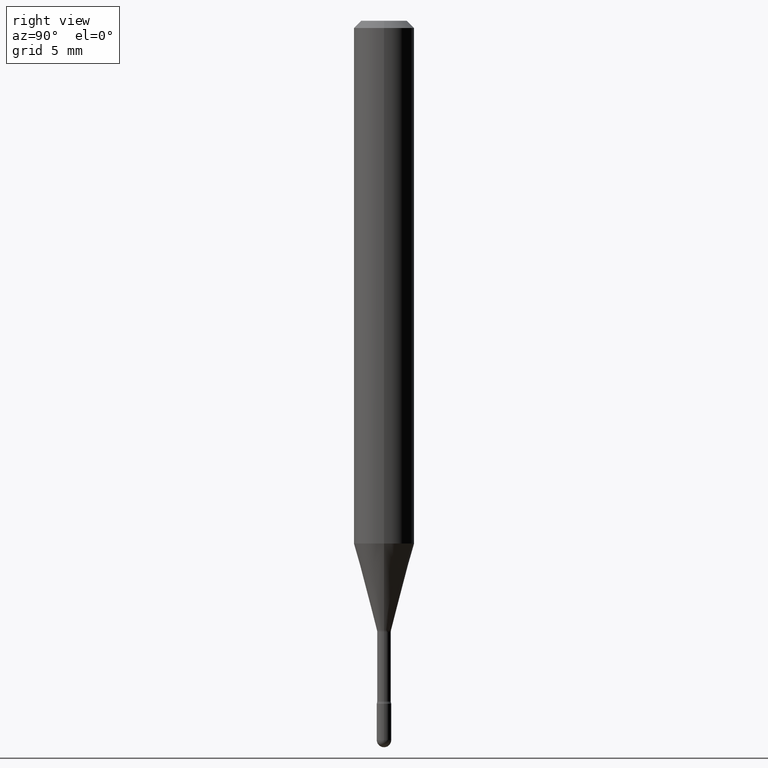
[diagram: clean part render]
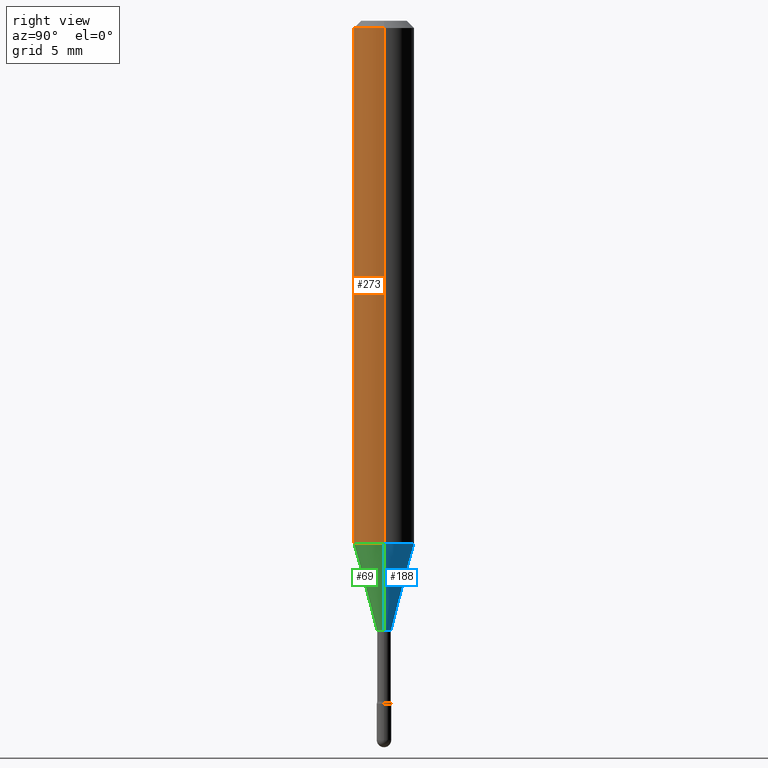
[diagram: same view with three faces highlighted in distinct colors, each labeled with its STEP entity id]
A machine part, right view with three faces highlighted in distinct colors.
Their STEP definitions:

[orange] entity #273 — the highlighted cylindrical surface (edge-blend (fillet) strip) has radius 1.5875 mm, axis along (-0, 0, 1).
#4 = DIRECTION ( 'NONE',  ( -2.445468806185136877E-29, 3.491481338843145188E-15, 1.000000000000000000 ) ) ;
#25 = EDGE_CURVE ( 'NONE', #564, #519, #400, .T. ) ;
#59 = CARTESIAN_POINT ( 'NONE',  ( 0.06250000000000000000, -4.888073874380391431E-16, -0.01500000000000008271 ) ) ;
#61 = CARTESIAN_POINT ( 'NONE',  ( -0.06250000000000000000, 4.440892098500642925E-16, 4.780733988912429571E-16 ) ) ;
#70 = ORIENTED_EDGE ( 'NONE', *, *, #306, .T. ) ;
#76 = DIRECTION ( 'NONE',  ( -2.445468806185136597E-29, 3.491481338843145583E-15, 1.000000000000000000 ) ) ;
#93 = CARTESIAN_POINT ( 'NONE',  ( 0.06250000000000000000, -4.364351673553899931E-16, 4.780733988912490708E-16 ) ) ;
#99 = EDGE_CURVE ( 'NONE', #270, #519, #388, .T. ) ;
#115 = DIRECTION ( 'NONE',  ( 1.000000000000000000, -6.982962677686266711E-15, 4.852736867747366207E-29 ) ) ;
#151 = DIRECTION ( 'NONE',  ( -2.445468806185136877E-29, 3.491481338843145188E-15, 1.000000000000000000 ) ) ;
#161 = CARTESIAN_POINT ( 'NONE',  ( -0.06250000000000001388, -3.324506606780626970E-15, -1.079368740913666747 ) ) ;
#165 = FACE_OUTER_BOUND ( 'NONE', #508, .T. ) ;
#201 = AXIS2_PLACEMENT_3D ( 'NONE', #470, #417, #426 ) ;
#227 = CARTESIAN_POINT ( 'NONE',  ( 3.668203209277725232E-31, -5.237222008264747365E-17, -0.01500000000000008271 ) ) ;
#236 = VECTOR ( 'NONE', #151, 39.37007874015748143 ) ;
#263 = CARTESIAN_POINT ( 'NONE',  ( 0.06250000000000001388, -4.205030983986081256E-15, -1.079368740913666747 ) ) ;
#270 = VERTEX_POINT ( 'NONE', #263 ) ;
#273 = ADVANCED_FACE ( 'NONE', ( #165 ), #378, .T. ) ;
#306 = EDGE_CURVE ( 'NONE', #337, #270, #421, .T. ) ;
#319 = LINE ( 'NONE', #61, #236 ) ;
#337 = VERTEX_POINT ( 'NONE', #161 ) ;
#338 = DIRECTION ( 'NONE',  ( 1.000000000000000000, -6.982962677686266711E-15, 0.000000000000000000 ) ) ;
#367 = EDGE_CURVE ( 'NONE', #337, #564, #319, .T. ) ;
#371 = CARTESIAN_POINT ( 'NONE',  ( -0.06250000000000000000, -1.466394808506606111E-15, -0.01500000000000008271 ) ) ;
#378 = CYLINDRICAL_SURFACE ( 'NONE', #393, 0.06250000000000000000 ) ;
#388 = LINE ( 'NONE', #93, #544 ) ;
#392 = ORIENTED_EDGE ( 'NONE', *, *, #99, .T. ) ;
#393 = AXIS2_PLACEMENT_3D ( 'NONE', #549, #76, #115 ) ;
#400 = CIRCLE ( 'NONE', #479, 0.06250000000000000000 ) ;
#402 = ORIENTED_EDGE ( 'NONE', *, *, #25, .F. ) ;
#417 = DIRECTION ( 'NONE',  ( -2.445468806185136597E-29, 3.491481338843145583E-15, 1.000000000000000000 ) ) ;
#421 = CIRCLE ( 'NONE', #201, 0.06250000000000000000 ) ;
#426 = DIRECTION ( 'NONE',  ( 1.000000000000000000, -6.982962677686262766E-15, 0.000000000000000000 ) ) ;
#428 = DIRECTION ( 'NONE',  ( -2.445468806185136597E-29, 3.491481338843145583E-15, 1.000000000000000000 ) ) ;
#470 = CARTESIAN_POINT ( 'NONE',  ( 2.639562586275698746E-29, -3.768595816630689586E-15, -1.079368740913666747 ) ) ;
#479 = AXIS2_PLACEMENT_3D ( 'NONE', #227, #428, #338 ) ;
#508 = EDGE_LOOP ( 'NONE', ( #566, #70, #392, #402 ) ) ;
#519 = VERTEX_POINT ( 'NONE', #59 ) ;
#544 = VECTOR ( 'NONE', #4, 39.37007874015748143 ) ;
#549 = CARTESIAN_POINT ( 'NONE',  ( -1.169113584055446105E-44, 1.669184350826100908E-30, 4.780733988912460139E-16 ) ) ;
#564 = VERTEX_POINT ( 'NONE', #371 ) ;
#566 = ORIENTED_EDGE ( 'NONE', *, *, #367, .F. ) ;

[blue] entity #188 — the highlighted conical surface has half-angle 15 deg.
#9 = DIRECTION ( 'NONE',  ( 1.000000000000000000, -6.982962677686262766E-15, 0.000000000000000000 ) ) ;
#16 = LINE ( 'NONE', #206, #434 ) ;
#21 = AXIS2_PLACEMENT_3D ( 'NONE', #134, #126, #9 ) ;
#28 = ORIENTED_EDGE ( 'NONE', *, *, #390, .F. ) ;
#126 = DIRECTION ( 'NONE',  ( -2.445468806185136597E-29, 3.491481338843145583E-15, 1.000000000000000000 ) ) ;
#128 = DIRECTION ( 'NONE',  ( 1.000000000000000000, -6.982962677686245411E-15, 0.000000000000000000 ) ) ;
#134 = CARTESIAN_POINT ( 'NONE',  ( 2.639562586275698746E-29, -3.768595816630689586E-15, -1.079368740913666747 ) ) ;
#149 = EDGE_CURVE ( 'NONE', #537, #270, #16, .T. ) ;
#154 = DIRECTION ( 'NONE',  ( -2.445468806185136597E-29, 3.491481338843145583E-15, 1.000000000000000000 ) ) ;
#161 = CARTESIAN_POINT ( 'NONE',  ( -0.06250000000000001388, -3.324506606780626970E-15, -1.079368740913666747 ) ) ;
#188 = ADVANCED_FACE ( 'NONE', ( #450 ), #443, .T. ) ;
#193 = AXIS2_PLACEMENT_3D ( 'NONE', #222, #154, #128 ) ;
#195 = DIRECTION ( 'NONE',  ( 1.000000000000000000, -6.982962677686245411E-15, 0.000000000000000000 ) ) ;
#197 = DIRECTION ( 'NONE',  ( 0.2588190451025211281, 1.565188264969623940E-15, 0.9659258262890682012 ) ) ;
#206 = CARTESIAN_POINT ( 'NONE',  ( 0.01461111260566398153, -4.494635346533574839E-15, -1.258092501787273276 ) ) ;
#222 = CARTESIAN_POINT ( 'NONE',  ( 3.076625968416195482E-29, -4.392606492528752047E-15, -1.258092501787273276 ) ) ;
#244 = CARTESIAN_POINT ( 'NONE',  ( 3.076625968416195482E-29, -4.392606492528752047E-15, -1.258092501787273276 ) ) ;
#247 = AXIS2_PLACEMENT_3D ( 'NONE', #244, #451, #195 ) ;
#256 = VERTEX_POINT ( 'NONE', #423 ) ;
#263 = CARTESIAN_POINT ( 'NONE',  ( 0.06250000000000001388, -4.205030983986081256E-15, -1.079368740913666747 ) ) ;
#270 = VERTEX_POINT ( 'NONE', #263 ) ;
#279 = ORIENTED_EDGE ( 'NONE', *, *, #149, .F. ) ;
#280 = ORIENTED_EDGE ( 'NONE', *, *, #357, .T. ) ;
#285 = CARTESIAN_POINT ( 'NONE',  ( -0.01461111260566398153, -4.288788293295477803E-15, -1.258092501787273276 ) ) ;
#292 = CIRCLE ( 'NONE', #21, 0.06250000000000000000 ) ;
#295 = LINE ( 'NONE', #285, #542 ) ;
#337 = VERTEX_POINT ( 'NONE', #161 ) ;
#339 = CIRCLE ( 'NONE', #247, 0.01461111260566398153 ) ;
#357 = EDGE_CURVE ( 'NONE', #537, #256, #339, .T. ) ;
#390 = EDGE_CURVE ( 'NONE', #270, #337, #292, .T. ) ;
#409 = CARTESIAN_POINT ( 'NONE',  ( 0.01461111260566398153, -4.494635346533574839E-15, -1.258092501787273276 ) ) ;
#416 = DIRECTION ( 'NONE',  ( -0.2588190451025211281, 5.211531920934548675E-15, 0.9659258262890682012 ) ) ;
#423 = CARTESIAN_POINT ( 'NONE',  ( -0.01461111260566398153, -3.806647450038052387E-15, -1.258092501787273276 ) ) ;
#434 = VECTOR ( 'NONE', #197, 39.37007874015748143 ) ;
#443 = CONICAL_SURFACE ( 'NONE', #193, 0.01461111260566398153, 0.2617993877991497964 ) ;
#450 = FACE_OUTER_BOUND ( 'NONE', #491, .T. ) ;
#451 = DIRECTION ( 'NONE',  ( -2.445468806185136597E-29, 3.491481338843145583E-15, 1.000000000000000000 ) ) ;
#491 = EDGE_LOOP ( 'NONE', ( #280, #500, #28, #279 ) ) ;
#500 = ORIENTED_EDGE ( 'NONE', *, *, #552, .T. ) ;
#537 = VERTEX_POINT ( 'NONE', #409 ) ;
#542 = VECTOR ( 'NONE', #416, 39.37007874015748143 ) ;
#552 = EDGE_CURVE ( 'NONE', #256, #337, #295, .T. ) ;

[green] entity #69 — the highlighted conical surface has half-angle 15 deg.
#12 = ORIENTED_EDGE ( 'NONE', *, *, #149, .T. ) ;
#16 = LINE ( 'NONE', #206, #434 ) ;
#68 = DIRECTION ( 'NONE',  ( -2.445468806185136597E-29, 3.491481338843145583E-15, 1.000000000000000000 ) ) ;
#69 = ADVANCED_FACE ( 'NONE', ( #290 ), #504, .T. ) ;
#71 = DIRECTION ( 'NONE',  ( 1.000000000000000000, -6.982962677686245411E-15, 0.000000000000000000 ) ) ;
#90 = ORIENTED_EDGE ( 'NONE', *, *, #306, .F. ) ;
#96 = ORIENTED_EDGE ( 'NONE', *, *, #552, .F. ) ;
#110 = DIRECTION ( 'NONE',  ( -2.445468806185136597E-29, 3.491481338843145583E-15, 1.000000000000000000 ) ) ;
#149 = EDGE_CURVE ( 'NONE', #537, #270, #16, .T. ) ;
#161 = CARTESIAN_POINT ( 'NONE',  ( -0.06250000000000001388, -3.324506606780626970E-15, -1.079368740913666747 ) ) ;
#170 = CARTESIAN_POINT ( 'NONE',  ( 3.076625968416195482E-29, -4.392606492528752047E-15, -1.258092501787273276 ) ) ;
#178 = EDGE_CURVE ( 'NONE', #256, #537, #321, .T. ) ;
#181 = AXIS2_PLACEMENT_3D ( 'NONE', #170, #68, #507 ) ;
#197 = DIRECTION ( 'NONE',  ( 0.2588190451025211281, 1.565188264969623940E-15, 0.9659258262890682012 ) ) ;
#201 = AXIS2_PLACEMENT_3D ( 'NONE', #470, #417, #426 ) ;
#206 = CARTESIAN_POINT ( 'NONE',  ( 0.01461111260566398153, -4.494635346533574839E-15, -1.258092501787273276 ) ) ;
#232 = EDGE_LOOP ( 'NONE', ( #96, #363, #12, #90 ) ) ;
#256 = VERTEX_POINT ( 'NONE', #423 ) ;
#260 = AXIS2_PLACEMENT_3D ( 'NONE', #509, #110, #71 ) ;
#263 = CARTESIAN_POINT ( 'NONE',  ( 0.06250000000000001388, -4.205030983986081256E-15, -1.079368740913666747 ) ) ;
#270 = VERTEX_POINT ( 'NONE', #263 ) ;
#285 = CARTESIAN_POINT ( 'NONE',  ( -0.01461111260566398153, -4.288788293295477803E-15, -1.258092501787273276 ) ) ;
#290 = FACE_OUTER_BOUND ( 'NONE', #232, .T. ) ;
#295 = LINE ( 'NONE', #285, #542 ) ;
#306 = EDGE_CURVE ( 'NONE', #337, #270, #421, .T. ) ;
#321 = CIRCLE ( 'NONE', #181, 0.01461111260566398153 ) ;
#337 = VERTEX_POINT ( 'NONE', #161 ) ;
#363 = ORIENTED_EDGE ( 'NONE', *, *, #178, .T. ) ;
#409 = CARTESIAN_POINT ( 'NONE',  ( 0.01461111260566398153, -4.494635346533574839E-15, -1.258092501787273276 ) ) ;
#416 = DIRECTION ( 'NONE',  ( -0.2588190451025211281, 5.211531920934548675E-15, 0.9659258262890682012 ) ) ;
#417 = DIRECTION ( 'NONE',  ( -2.445468806185136597E-29, 3.491481338843145583E-15, 1.000000000000000000 ) ) ;
#421 = CIRCLE ( 'NONE', #201, 0.06250000000000000000 ) ;
#423 = CARTESIAN_POINT ( 'NONE',  ( -0.01461111260566398153, -3.806647450038052387E-15, -1.258092501787273276 ) ) ;
#426 = DIRECTION ( 'NONE',  ( 1.000000000000000000, -6.982962677686262766E-15, 0.000000000000000000 ) ) ;
#434 = VECTOR ( 'NONE', #197, 39.37007874015748143 ) ;
#470 = CARTESIAN_POINT ( 'NONE',  ( 2.639562586275698746E-29, -3.768595816630689586E-15, -1.079368740913666747 ) ) ;
#504 = CONICAL_SURFACE ( 'NONE', #260, 0.01461111260566398153, 0.2617993877991497964 ) ;
#507 = DIRECTION ( 'NONE',  ( 1.000000000000000000, -6.982962677686245411E-15, 0.000000000000000000 ) ) ;
#509 = CARTESIAN_POINT ( 'NONE',  ( 3.076625968416195482E-29, -4.392606492528752047E-15, -1.258092501787273276 ) ) ;
#537 = VERTEX_POINT ( 'NONE', #409 ) ;
#542 = VECTOR ( 'NONE', #416, 39.37007874015748143 ) ;
#552 = EDGE_CURVE ( 'NONE', #256, #337, #295, .T. ) ;